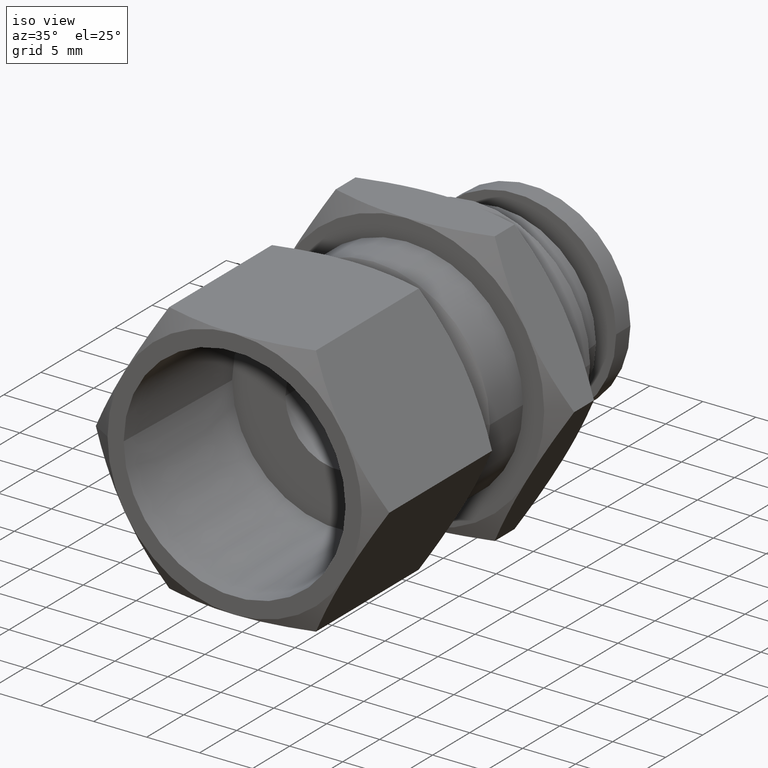
[diagram: clean part render]
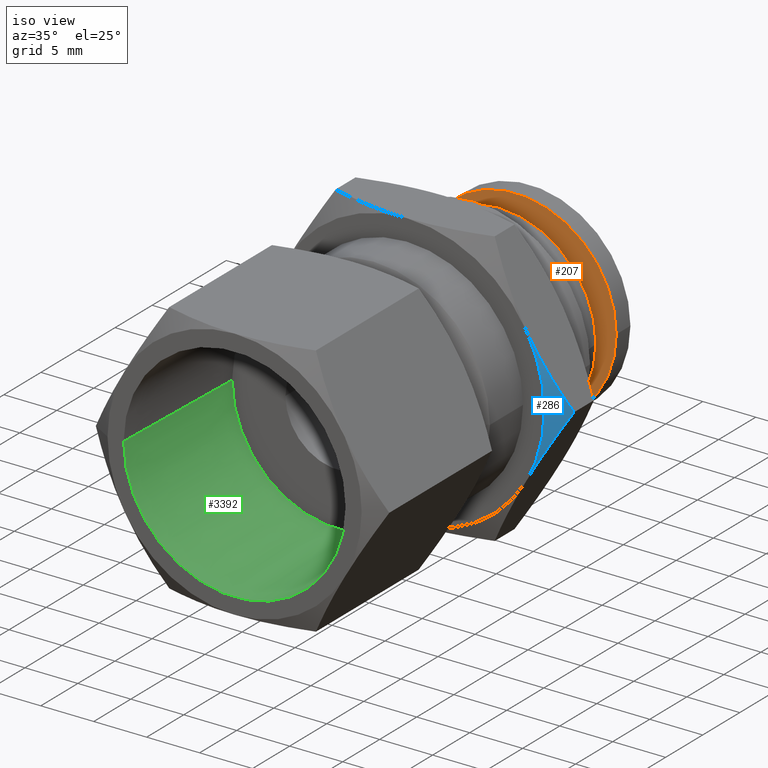
[diagram: same view with three faces highlighted in distinct colors, each labeled with its STEP entity id]
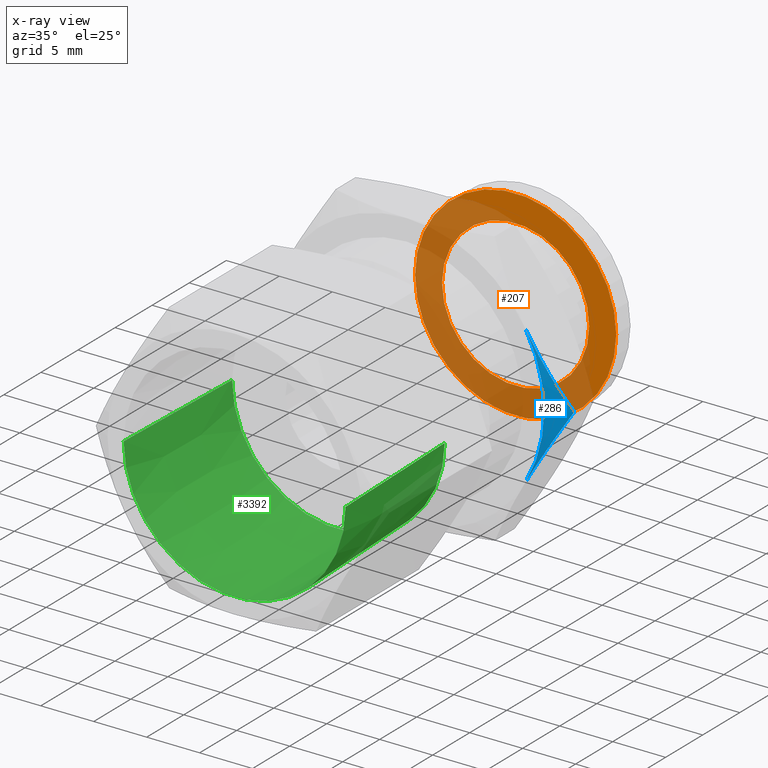
[diagram: x-ray of the same camera — body ghosted, the three highlighted faces saturated]
A machine part, iso view with three faces highlighted in distinct colors.
The next image is the same camera in x-ray (body ghosted, the three faces saturated) — at least one of them is partly hidden behind the body in this view.
Their STEP definitions:

[orange] entity #207 — the highlighted planar face has unit normal (-0, -1, 0).
#34 = CARTESIAN_POINT ( 'NONE',  ( 2.548650421147714900E-013, 0.8622047244095270000, 0.0000000000000000000 ) ) ;
#146 = EDGE_CURVE ( 'NONE', #584, #1307, #1711, .T. ) ;
#153 = CIRCLE ( 'NONE', #1815, 0.2736220472438630800 ) ;
#175 = DIRECTION ( 'NONE',  ( 1.000000000000000000, -2.955969000000000000E-013, 0.0000000000000000000 ) ) ;
#207 = ADVANCED_FACE ( 'NONE', ( #871, #2376 ), #3649, .T. ) ;
#333 = DIRECTION ( 'NONE',  ( 1.000000000000000000, -2.954507983297201200E-013, 0.0000000000000000000 ) ) ;
#391 = EDGE_LOOP ( 'NONE', ( #2901, #2994 ) ) ;
#445 = EDGE_LOOP ( 'NONE', ( #879, #2390 ) ) ;
#550 = DIRECTION ( 'NONE',  ( 1.000000000000000000, -2.954507983297201200E-013, 0.0000000000000000000 ) ) ;
#559 = EDGE_CURVE ( 'NONE', #837, #1210, #153, .T. ) ;
#578 = DIRECTION ( 'NONE',  ( 2.955969000000000000E-013, 1.000000000000000000, -0.0000000000000000000 ) ) ;
#584 = VERTEX_POINT ( 'NONE', #885 ) ;
#589 = CARTESIAN_POINT ( 'NONE',  ( 2.548650421147714900E-013, 0.8622047244095270000, 0.0000000000000000000 ) ) ;
#661 = CARTESIAN_POINT ( 'NONE',  ( 0.2736220472441179800, 0.8622047244094164200, 0.0000000000000000000 ) ) ;
#706 = CIRCLE ( 'NONE', #2832, 0.3740157480312472100 ) ;
#787 = AXIS2_PLACEMENT_3D ( 'NONE', #3640, #3630, #175 ) ;
#837 = VERTEX_POINT ( 'NONE', #661 ) ;
#871 = FACE_BOUND ( 'NONE', #445, .T. ) ;
#879 = ORIENTED_EDGE ( 'NONE', *, *, #559, .T. ) ;
#885 = CARTESIAN_POINT ( 'NONE',  ( -0.3740157480309923000, 0.8622047244096374700, 4.580371886571835300E-017 ) ) ;
#1057 = AXIS2_PLACEMENT_3D ( 'NONE', #589, #578, #550 ) ;
#1210 = VERTEX_POINT ( 'NONE', #2607 ) ;
#1307 = VERTEX_POINT ( 'NONE', #2082 ) ;
#1572 = DIRECTION ( 'NONE',  ( 2.955969000000000000E-013, 1.000000000000000000, -0.0000000000000000000 ) ) ;
#1644 = CIRCLE ( 'NONE', #2973, 0.2736220472438630800 ) ;
#1711 = CIRCLE ( 'NONE', #1057, 0.3740157480312472100 ) ;
#1815 = AXIS2_PLACEMENT_3D ( 'NONE', #1880, #1855, #1831 ) ;
#1831 = DIRECTION ( 'NONE',  ( 1.000000000000000000, -2.955269921666585100E-013, 0.0000000000000000000 ) ) ;
#1855 = DIRECTION ( 'NONE',  ( 2.955969000000000000E-013, 1.000000000000000000, -0.0000000000000000000 ) ) ;
#1880 = CARTESIAN_POINT ( 'NONE',  ( 2.548650448818897100E-013, 0.8622047244094973600, 0.0000000000000000000 ) ) ;
#2082 = CARTESIAN_POINT ( 'NONE',  ( 0.3740157480315020600, 0.8622047244094164200, 0.0000000000000000000 ) ) ;
#2083 = DIRECTION ( 'NONE',  ( 2.955969000000000000E-013, 1.000000000000000000, -0.0000000000000000000 ) ) ;
#2355 = EDGE_CURVE ( 'NONE', #1210, #837, #1644, .T. ) ;
#2376 = FACE_OUTER_BOUND ( 'NONE', #391, .T. ) ;
#2390 = ORIENTED_EDGE ( 'NONE', *, *, #2355, .T. ) ;
#2607 = CARTESIAN_POINT ( 'NONE',  ( -0.2736220472436082200, 0.8622047244095781800, 3.350903643333427800E-017 ) ) ;
#2632 = EDGE_CURVE ( 'NONE', #1307, #584, #706, .T. ) ;
#2832 = AXIS2_PLACEMENT_3D ( 'NONE', #34, #2083, #333 ) ;
#2901 = ORIENTED_EDGE ( 'NONE', *, *, #2632, .F. ) ;
#2973 = AXIS2_PLACEMENT_3D ( 'NONE', #3205, #1572, #3497 ) ;
#2994 = ORIENTED_EDGE ( 'NONE', *, *, #146, .F. ) ;
#3205 = CARTESIAN_POINT ( 'NONE',  ( 2.548650448818897100E-013, 0.8622047244094973600, 0.0000000000000000000 ) ) ;
#3497 = DIRECTION ( 'NONE',  ( 1.000000000000000000, -2.955269921666585100E-013, 0.0000000000000000000 ) ) ;
#3630 = DIRECTION ( 'NONE',  ( -2.955969000000000000E-013, -1.000000000000000000, 0.0000000000000000000 ) ) ;
#3640 = CARTESIAN_POINT ( 'NONE',  ( 0.3238188976378098000, 0.8622047244094164200, 0.0000000000000000000 ) ) ;
#3649 = PLANE ( 'NONE',  #787 ) ;

[blue] entity #286 — the highlighted conical surface has half-angle 60 deg.
#60 = CONICAL_SURFACE ( 'NONE', #3623, 0.5914635291424508200, 1.047197549999601600 ) ;
#138 = CARTESIAN_POINT ( 'NONE',  ( 0.4684551877634282000, 0.2832416364446056500, 0.2122338609685808200 ) ) ;
#286 = ADVANCED_FACE ( 'NONE', ( #2729 ), #60, .T. ) ;
#465 = CARTESIAN_POINT ( 'NONE',  ( 0.4684551881194038400, 0.2832416364484881000, -0.2122338603383387400 ) ) ;
#513 = CARTESIAN_POINT ( 'NONE',  ( 0.5909884648485827000, 0.3289547535767539700, 5.607984765826786800E-010 ) ) ;
#563 = ORIENTED_EDGE ( 'NONE', *, *, #2015, .T. ) ;
#621 = CIRCLE ( 'NONE', #1746, 0.5118110236493295100 ) ;
#683 = EDGE_CURVE ( 'NONE', #2219, #2698, #621, .T. ) ;
#700 = B_SPLINE_CURVE_WITH_KNOTS ( 'NONE', 3,
 ( #2465, #465, #3035, #1382, #3311, #1677 ),
 .UNSPECIFIED., .F., .F.,
 ( 4, 2, 4 ),
 ( 1.535902393265669800E-014, 0.003797417457488138100, 0.007594834914960917800 ),
 .UNSPECIFIED. ) ;
#776 = B_SPLINE_CURVE_WITH_KNOTS ( 'NONE', 3,
 ( #3563, #1637, #2724, #1910, #138, #2183 ),
 .UNSPECIFIED., .F., .F.,
 ( 4, 2, 4 ),
 ( 0.0000000000000000000, 0.003797417404051361400, 0.007594834808102721000 ),
 .UNSPECIFIED. ) ;
#1024 = EDGE_LOOP ( 'NONE', ( #2087, #1593, #563 ) ) ;
#1382 = CARTESIAN_POINT ( 'NONE',  ( 0.5425275893574830200, 0.3035275122539574700, -0.08393669796904289200 ) ) ;
#1593 = ORIENTED_EDGE ( 'NONE', *, *, #2038, .T. ) ;
#1637 = CARTESIAN_POINT ( 'NONE',  ( 0.5668524924020917900, 0.3150198434570320400, 0.04180473002994633500 ) ) ;
#1677 = CARTESIAN_POINT ( 'NONE',  ( 0.5909884648485827000, 0.3289547535767539700, 5.607984765826786800E-010 ) ) ;
#1736 = DIRECTION ( 'NONE',  ( -1.000000000000000000, 2.955701922372159400E-013, 1.776356839400250500E-015 ) ) ;
#1746 = AXIS2_PLACEMENT_3D ( 'NONE', #2045, #1767, #1736 ) ;
#1749 = CARTESIAN_POINT ( 'NONE',  ( 0.4432413484054681400, 0.2832416364524503200, -0.2559055118178212900 ) ) ;
#1767 = DIRECTION ( 'NONE',  ( -2.956027937141057600E-013, -1.000000000000000000, 1.706660383820003600E-029 ) ) ;
#1821 = CARTESIAN_POINT ( 'NONE',  ( 0.4432413484054683100, 0.2832416364524503200, 0.2559055118178211200 ) ) ;
#1910 = CARTESIAN_POINT ( 'NONE',  ( 0.4933309886504777500, 0.2876118666751882300, 0.1691477099532467400 ) ) ;
#1978 = DIRECTION ( 'NONE',  ( -1.000000000000000000, 2.956027937141057100E-013, 0.0000000000000000000 ) ) ;
#1999 = DIRECTION ( 'NONE',  ( 2.956027937141057600E-013, 1.000000000000000000, -1.706660383820003600E-029 ) ) ;
#2015 = EDGE_CURVE ( 'NONE', #2944, #2698, #776, .T. ) ;
#2038 = EDGE_CURVE ( 'NONE', #2219, #2944, #700, .T. ) ;
#2045 = CARTESIAN_POINT ( 'NONE',  ( 8.372808215479847000E-014, 0.2832416364604833900, 7.848486625153098900E-031 ) ) ;
#2087 = ORIENTED_EDGE ( 'NONE', *, *, #683, .F. ) ;
#2183 = CARTESIAN_POINT ( 'NONE',  ( 0.4432413484054683100, 0.2832416364524503200, 0.2559055118178211200 ) ) ;
#2219 = VERTEX_POINT ( 'NONE', #1749 ) ;
#2465 = CARTESIAN_POINT ( 'NONE',  ( 0.4432413484054681400, 0.2832416364524503200, -0.2559055118178212900 ) ) ;
#2698 = VERTEX_POINT ( 'NONE', #1821 ) ;
#2724 = CARTESIAN_POINT ( 'NONE',  ( 0.5425275879709518000, 0.3035275117024440700, 0.08393670037058528800 ) ) ;
#2729 = FACE_OUTER_BOUND ( 'NONE', #1024, .T. ) ;
#2810 = CARTESIAN_POINT ( 'NONE',  ( 9.732208477428938100E-014, 0.3292290320756901000, 0.0000000000000000000 ) ) ;
#2944 = VERTEX_POINT ( 'NONE', #513 ) ;
#3035 = CARTESIAN_POINT ( 'NONE',  ( 0.4933309893611313400, 0.2876118668021374100, -0.1691477087223585700 ) ) ;
#3311 = CARTESIAN_POINT ( 'NONE',  ( 0.5668524943029392700, 0.3150198444097983600, -0.04180472671423494200 ) ) ;
#3563 = CARTESIAN_POINT ( 'NONE',  ( 0.5909884648485827000, 0.3289547535767539700, 5.607984765826786800E-010 ) ) ;
#3623 = AXIS2_PLACEMENT_3D ( 'NONE', #2810, #1999, #1978 ) ;

[green] entity #3392 — the highlighted conical surface has half-angle 1.79 deg.
#68 = VERTEX_POINT ( 'NONE', #875 ) ;
#86 = DIRECTION ( 'NONE',  ( -2.955362829580007300E-013, -1.000000000000000000, 0.0000000000000000000 ) ) ;
#112 = LINE ( 'NONE', #860, #823 ) ;
#118 = ORIENTED_EDGE ( 'NONE', *, *, #3711, .F. ) ;
#123 = EDGE_CURVE ( 'NONE', #1541, #1065, #112, .T. ) ;
#132 = CARTESIAN_POINT ( 'NONE',  ( -1.862095888681400800E-013, -0.6299212598427388300, 0.0000000000000000000 ) ) ;
#157 = CARTESIAN_POINT ( 'NONE',  ( -1.862095888681403100E-013, -0.6299212598427395000, 0.0000000000000000000 ) ) ;
#223 = CONICAL_SURFACE ( 'NONE', #577, 0.4124999999901617900, 0.03124139357500086900 ) ;
#433 = DIRECTION ( 'NONE',  ( 1.000000000000000000, -2.953707164129262300E-013, 0.0000000000000000000 ) ) ;
#577 = AXIS2_PLACEMENT_3D ( 'NONE', #157, #795, #2238 ) ;
#685 = ORIENTED_EDGE ( 'NONE', *, *, #1609, .F. ) ;
#755 = ORIENTED_EDGE ( 'NONE', *, *, #123, .T. ) ;
#768 = DIRECTION ( 'NONE',  ( -0.03123631176147925400, -0.9995120273551186800, 3.825344921550263900E-018 ) ) ;
#795 = DIRECTION ( 'NONE',  ( -2.955362829580007300E-013, -1.000000000000000000, 0.0000000000000000000 ) ) ;
#823 = VECTOR ( 'NONE', #768, 39.37007874015748900 ) ;
#860 = CARTESIAN_POINT ( 'NONE',  ( -0.4124999999903479200, -0.6299212598426174900, 5.051668046362348800E-017 ) ) ;
#875 = CARTESIAN_POINT ( 'NONE',  ( 0.3952747297791970900, -0.07874015748003955500, 0.0000000000000000000 ) ) ;
#1065 = VERTEX_POINT ( 'NONE', #1596 ) ;
#1108 = CIRCLE ( 'NONE', #2531, 0.3952747297792204000 ) ;
#1176 = CARTESIAN_POINT ( 'NONE',  ( 0.4124999999899756100, -0.6299212598428606300, 0.0000000000000000000 ) ) ;
#1186 = LINE ( 'NONE', #1575, #2033 ) ;
#1263 = AXIS2_PLACEMENT_3D ( 'NONE', #132, #2175, #433 ) ;
#1484 = EDGE_LOOP ( 'NONE', ( #118, #755, #3343, #685 ) ) ;
#1541 = VERTEX_POINT ( 'NONE', #3309 ) ;
#1575 = CARTESIAN_POINT ( 'NONE',  ( 0.4124999999899756100, -0.6299212598428615100, 0.0000000000000000000 ) ) ;
#1596 = CARTESIAN_POINT ( 'NONE',  ( -0.4124999999903479200, -0.6299212598426169300, 5.051668046362348800E-017 ) ) ;
#1609 = EDGE_CURVE ( 'NONE', #68, #2560, #1186, .T. ) ;
#1846 = DIRECTION ( 'NONE',  ( 0.03123631176088847600, -0.9995120273551372200, 0.0000000000000000000 ) ) ;
#1861 = CARTESIAN_POINT ( 'NONE',  ( -2.331557463914014500E-014, -0.07874015747992274500, 0.0000000000000000000 ) ) ;
#2033 = VECTOR ( 'NONE', #1846, 39.37007874015748100 ) ;
#2131 = DIRECTION ( 'NONE',  ( 1.000000000000000000, -2.955429250291762800E-013, 0.0000000000000000000 ) ) ;
#2137 = FACE_OUTER_BOUND ( 'NONE', #1484, .T. ) ;
#2175 = DIRECTION ( 'NONE',  ( 2.955362829580007300E-013, 1.000000000000000000, -0.0000000000000000000 ) ) ;
#2238 = DIRECTION ( 'NONE',  ( 1.000000000000000000, -2.957018495030752400E-013, 0.0000000000000000000 ) ) ;
#2531 = AXIS2_PLACEMENT_3D ( 'NONE', #1861, #86, #2131 ) ;
#2560 = VERTEX_POINT ( 'NONE', #1176 ) ;
#3002 = CIRCLE ( 'NONE', #1263, 0.4124999999901617900 ) ;
#3260 = EDGE_CURVE ( 'NONE', #2560, #1065, #3002, .T. ) ;
#3309 = CARTESIAN_POINT ( 'NONE',  ( -0.3952747297792436600, -0.07874015747980592200, 4.946193686220960300E-017 ) ) ;
#3343 = ORIENTED_EDGE ( 'NONE', *, *, #3260, .F. ) ;
#3392 = ADVANCED_FACE ( 'NONE', ( #2137 ), #223, .F. ) ;
#3711 = EDGE_CURVE ( 'NONE', #1541, #68, #1108, .T. ) ;